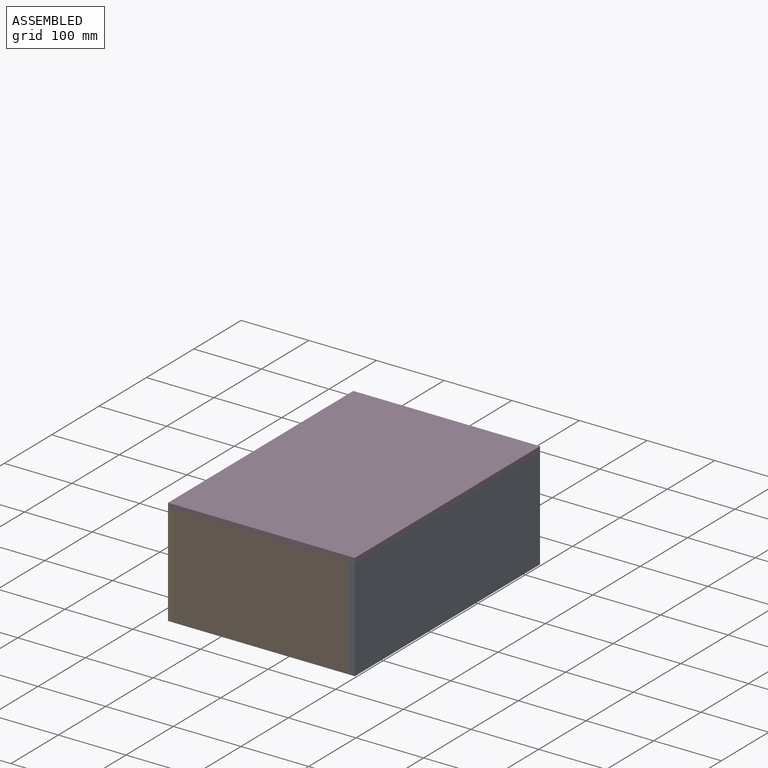
[diagram: assembled view]
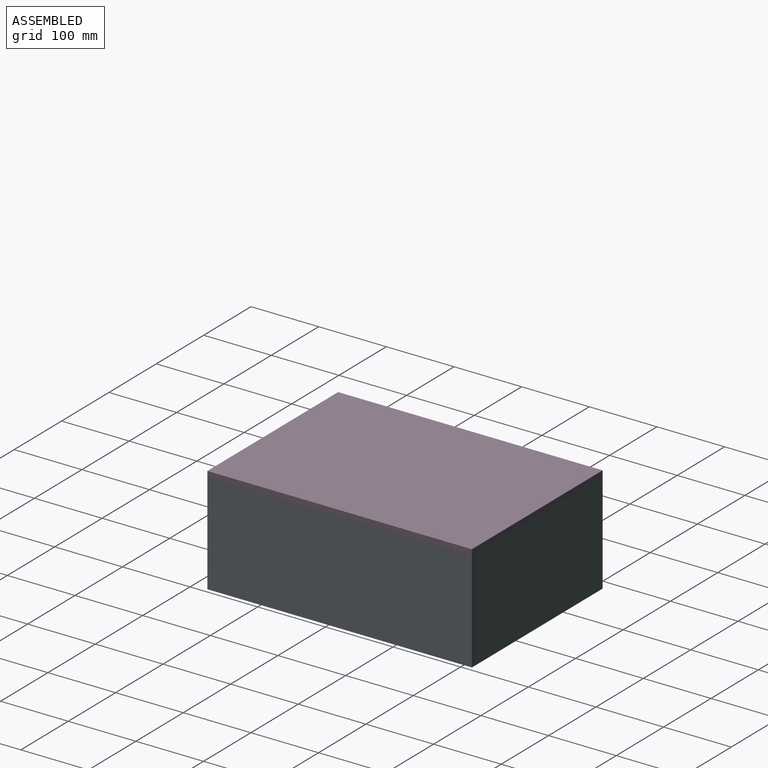
[diagram: assembled view, second angle]
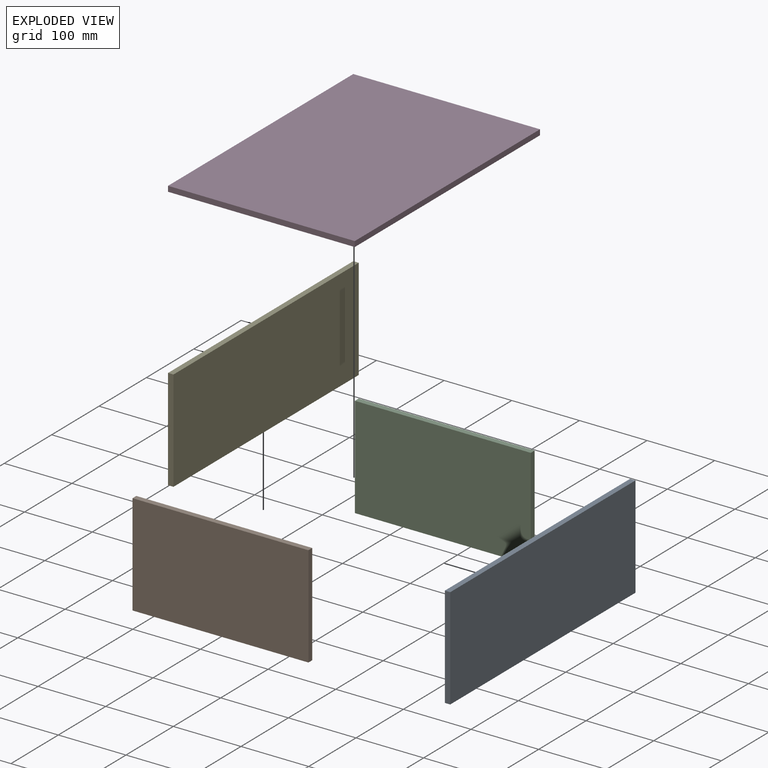
[diagram: exploded view]
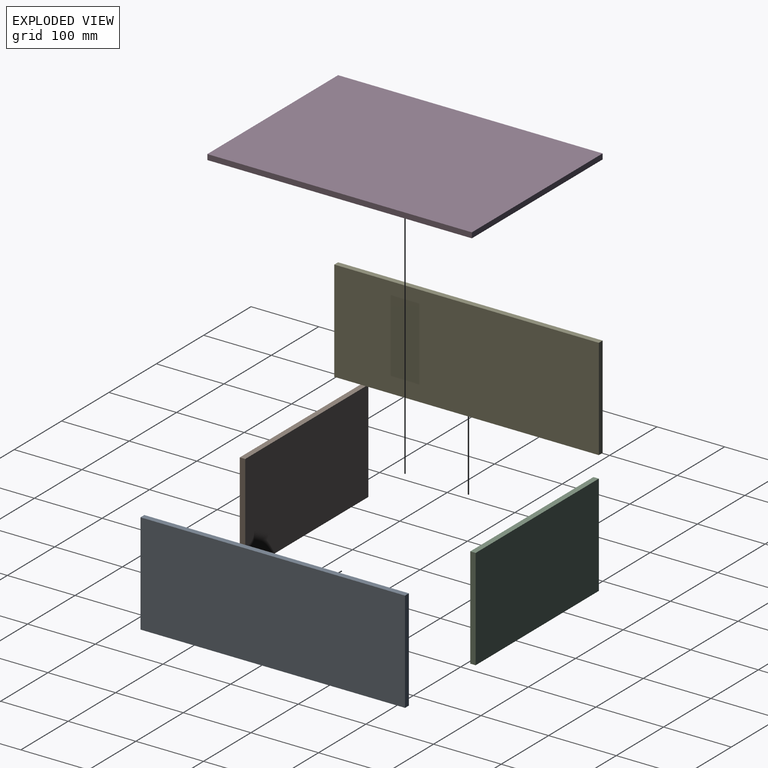
[diagram: exploded view, second angle]
ASSEMBLY  parts=5 mates=4
PART A: 6 faces, bbox 8x391x150 mm
  f0: plane 391x8mm, normal (0,0,-1), area 3128mm2, adj f1,f3,f4,f5
  f1: plane 150x8mm, normal (0,1,0), area 1200mm2, adj f0,f2,f4,f5
  f2: plane 391x8mm, normal (0,0,1), area 3128mm2, adj f1,f3,f4,f5
  f3: plane 150x8mm, normal (0,-1,0), area 1200mm2, adj f0,f2,f4,f5
  f4: plane 391x150mm, normal (1,0,0), area 58650mm2, adj f0,f1,f2,f3
  f5: plane 391x150mm, normal (-1,0,0), area 58650mm2, adj f0,f1,f2,f3
PART B: 6 faces, bbox 260x8x150 mm
  f0: plane 150x8mm, normal (1,0,0), area 1200mm2, adj f1,f3,f4,f5
  f1: plane 260x8mm, normal (0,0,1), area 2080mm2, adj f0,f2,f4,f5
  f2: plane 150x8mm, normal (-1,0,0), area 1200mm2, adj f1,f3,f4,f5
  f3: plane 260x8mm, normal (0,0,-1), area 2080mm2, adj f0,f2,f4,f5
  f4: plane 260x150mm, normal (0,-1,0), area 39000mm2, adj f0,f1,f2,f3
  f5: plane 260x150mm, normal (0,1,0), area 39000mm2, adj f0,f1,f2,f3
PART C: same geometry as B
PART D: 6 faces, bbox 276x391x8 mm
  f0: plane 391x8mm, normal (1,0,0), area 3128mm2, adj f1,f3,f4,f5
  f1: plane 276x8mm, normal (0,1,0), area 2208mm2, adj f0,f2,f4,f5
  f2: plane 391x8mm, normal (-1,0,0), area 3128mm2, adj f1,f3,f4,f5
  f3: plane 276x8mm, normal (0,-1,0), area 2208mm2, adj f0,f2,f4,f5
  f4: plane 391x276mm, normal (0,0,1), area 107916mm2, adj f0,f1,f2,f3
  f5: plane 391x276mm, normal (0,0,-1), area 107916mm2, adj f0,f1,f2,f3
PART E: same geometry as A
PLACE A t=(98.87,125.96,8.66)mm
PLACE B t=(-31.13,-61.54,8.66)mm
PLACE C t=(-31.13,321.46,8.66)mm
PLACE D t=(-31.13,125.96,83.66)mm
PLACE E t=(-169.13,125.96,8.66)mm
MATE fastened E.f2 <-> D.f5  axis (0,0,1) through (-169.13,-69.54,83.66)mm
MATE fastened B.f0 <-> A.f5  axis (1,0,0) through (98.87,-69.54,83.66)mm
MATE fastened C.f2 <-> E.f4  axis (-1,0,0) through (-161.13,321.46,83.66)mm
MATE fastened D.f5 <-> A.f2  axis (0,0,-1) through (106.87,-69.54,83.66)mm
